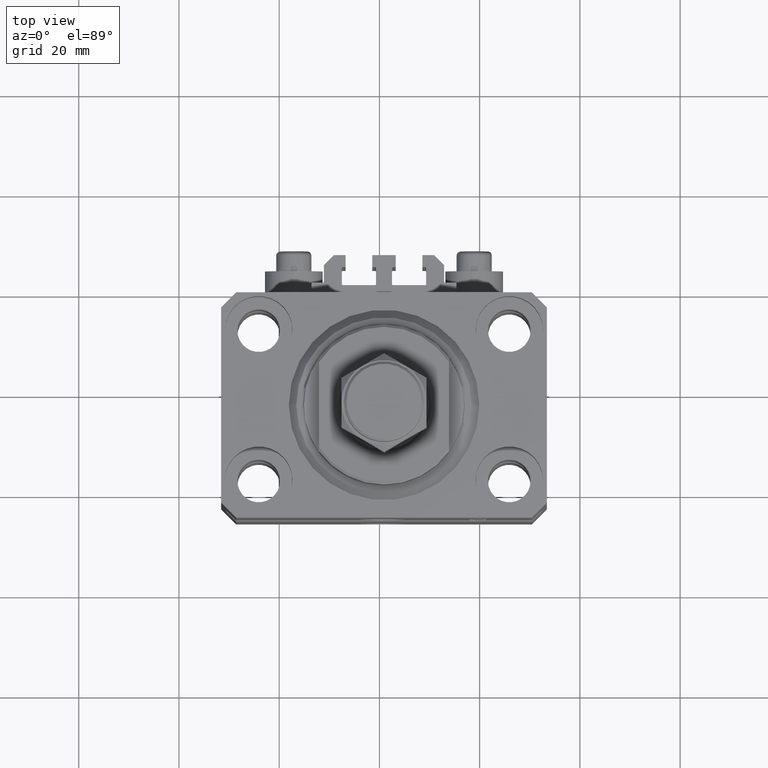
[diagram: clean part render]
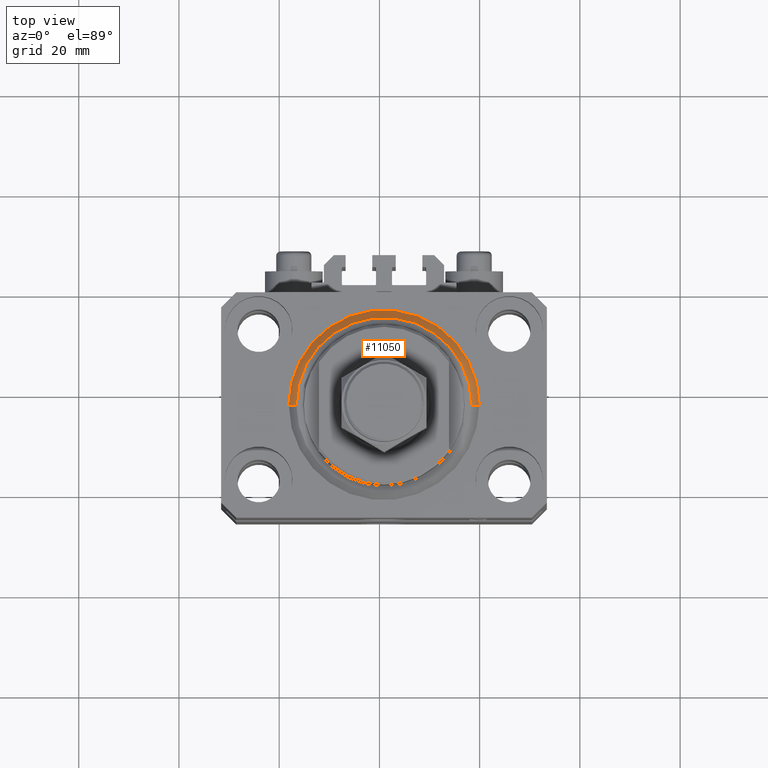
[diagram: same view with one face highlighted and labeled with its STEP entity id]
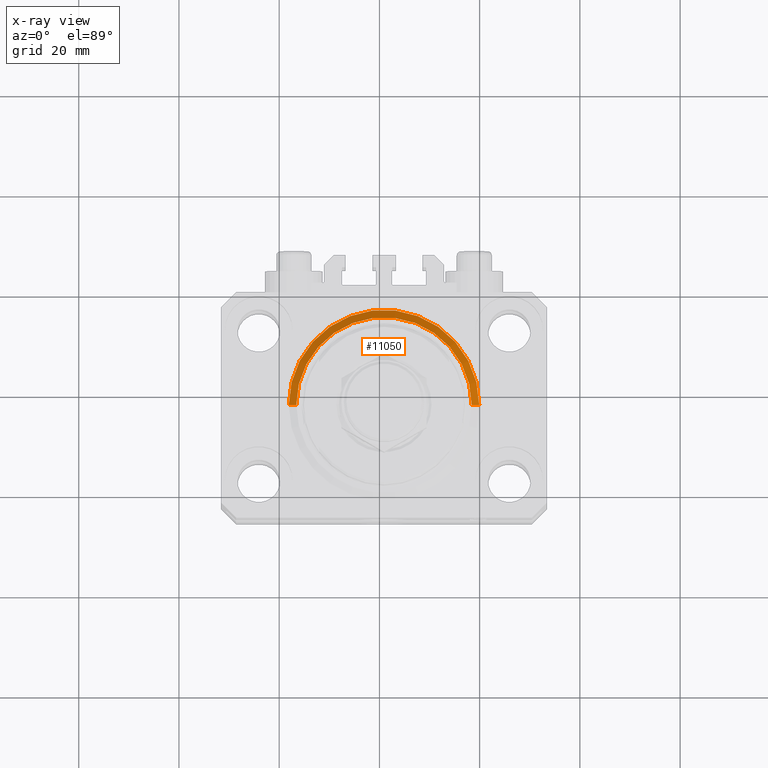
[diagram: x-ray of the same camera — body ghosted, the highlighted face saturated]
A machine part, top view. The second image highlights one B-rep face of the part: STEP entity #11050.
The next image is the same camera in x-ray: the body ghosted, the highlighted face saturated — about 0% of this face is hidden behind the body in this view.
In plain terms, the highlighted conical surface has half-angle 45 deg.
Its self-contained STEP definition (entity closure, byte-faithful):
#1010 = CARTESIAN_POINT ( 'NONE',  ( -19.00000000000000000, 0.000000000000000000, 1.500000000000004885 ) ) ;
#1336 = EDGE_CURVE ( 'NONE', #42837, #9337, #47339, .T. ) ;
#2626 = DIRECTION ( 'NONE',  ( -0.000000000000000000, -0.000000000000000000, 1.000000000000000000 ) ) ;
#5560 = DIRECTION ( 'NONE',  ( -0.000000000000000000, -0.000000000000000000, -1.000000000000000000 ) ) ;
#6602 = ORIENTED_EDGE ( 'NONE', *, *, #39962, .F. ) ;
#6891 = VERTEX_POINT ( 'NONE', #37431 ) ;
#8566 = CARTESIAN_POINT ( 'NONE',  ( 0.000000000000000000, 0.000000000000000000, 0.000000000000000000 ) ) ;
#8956 = EDGE_CURVE ( 'NONE', #42837, #29720, #9410, .T. ) ;
#9337 = VERTEX_POINT ( 'NONE', #1010 ) ;
#9410 = CIRCLE ( 'NONE', #42074, 17.49999999999999289 ) ;
#9628 = CARTESIAN_POINT ( 'NONE',  ( 0.000000000000000000, 0.000000000000000000, 1.500000000000004885 ) ) ;
#10126 = ORIENTED_EDGE ( 'NONE', *, *, #8956, .F. ) ;
#11050 = ADVANCED_FACE ( 'NONE', ( #37070 ), #11737, .T. ) ;
#11737 = CONICAL_SURFACE ( 'NONE', #35653, 19.00000000000000000, 0.7853981633974492782 ) ;
#13032 = LINE ( 'NONE', #28254, #17701 ) ;
#15646 = CIRCLE ( 'NONE', #43550, 19.00000000000000000 ) ;
#15785 = ORIENTED_EDGE ( 'NONE', *, *, #1336, .T. ) ;
#17701 = VECTOR ( 'NONE', #40478, 1000.000000000000000 ) ;
#19833 = ORIENTED_EDGE ( 'NONE', *, *, #23724, .F. ) ;
#23724 = EDGE_CURVE ( 'NONE', #6891, #9337, #15646, .T. ) ;
#24607 = DIRECTION ( 'NONE',  ( -0.000000000000000000, -0.000000000000000000, 1.000000000000000000 ) ) ;
#28254 = CARTESIAN_POINT ( 'NONE',  ( 19.00000000000000000, 0.000000000000000000, 1.500000000000004885 ) ) ;
#29720 = VERTEX_POINT ( 'NONE', #31229 ) ;
#31229 = CARTESIAN_POINT ( 'NONE',  ( 17.49999999999999289, 0.000000000000000000, 0.000000000000000000 ) ) ;
#35653 = AXIS2_PLACEMENT_3D ( 'NONE', #9628, #24607, #47812 ) ;
#37070 = FACE_OUTER_BOUND ( 'NONE', #48215, .T. ) ;
#37431 = CARTESIAN_POINT ( 'NONE',  ( 19.00000000000000000, 2.326828918379970970E-15, 1.500000000000004885 ) ) ;
#39962 = EDGE_CURVE ( 'NONE', #29720, #6891, #13032, .T. ) ;
#40478 = DIRECTION ( 'NONE',  ( 0.7071067811865483499, 0.000000000000000000, 0.7071067811865467956 ) ) ;
#40822 = CARTESIAN_POINT ( 'NONE',  ( 0.000000000000000000, 0.000000000000000000, 1.500000000000004885 ) ) ;
#42074 = AXIS2_PLACEMENT_3D ( 'NONE', #8566, #5560, #43754 ) ;
#42837 = VERTEX_POINT ( 'NONE', #45489 ) ;
#43550 = AXIS2_PLACEMENT_3D ( 'NONE', #40822, #2626, #44812 ) ;
#43754 = DIRECTION ( 'NONE',  ( 1.000000000000000000, 0.000000000000000000, 0.000000000000000000 ) ) ;
#44086 = CARTESIAN_POINT ( 'NONE',  ( -19.00000000000000000, 2.326828918379970970E-15, 1.500000000000004885 ) ) ;
#44812 = DIRECTION ( 'NONE',  ( 1.000000000000000000, 0.000000000000000000, 0.000000000000000000 ) ) ;
#45489 = CARTESIAN_POINT ( 'NONE',  ( -17.49999999999999289, 2.234980408443919215E-15, 0.000000000000000000 ) ) ;
#46565 = VECTOR ( 'NONE', #47834, 1000.000000000000000 ) ;
#47339 = LINE ( 'NONE', #44086, #46565 ) ;
#47812 = DIRECTION ( 'NONE',  ( 1.000000000000000000, 0.000000000000000000, 0.000000000000000000 ) ) ;
#47834 = DIRECTION ( 'NONE',  ( -0.7071067811865483499, 8.659560562354943952E-17, 0.7071067811865467956 ) ) ;
#48215 = EDGE_LOOP ( 'NONE', ( #10126, #15785, #19833, #6602 ) ) ;